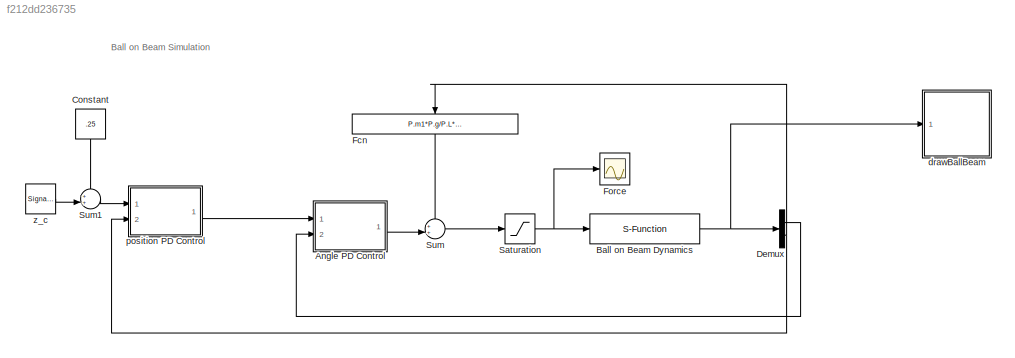
MODEL slx_f212dd236735
KIND model
CONFIG AbsTol = auto
CONFIG FixedStep = auto
CONFIG InitFcn = param
CONFIG MaxStep = auto
CONFIG MinStep = auto
CONFIG RelTol = 1e-3
CONFIG SampleTimeConstraint = Unconstrained
CONFIG Solver = ode45
CONFIG SolverMode = Auto
CONFIG SolverName = ode45
CONFIG StartTime = 0.0
CONFIG StopTime = 200
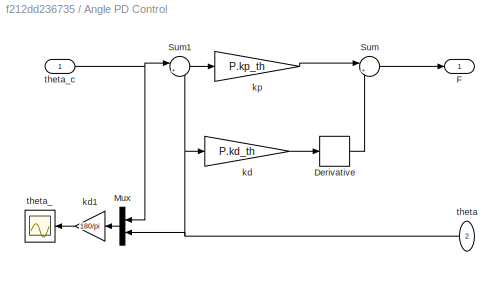
BLOCK [SubSystem] Angle PD Control 
  Ports = [2, 1]
  RequestExecContextInheritance = off
BLOCK [Derivative] Angle PD Control /Derivative
BLOCK [Outport] Angle PD Control /F
  IconDisplay = Port number
BLOCK [Mux] Angle PD Control /Mux
  DisplayOption = bar
  Inputs = 2
  Ports = [2, 1]
BLOCK [Sum] Angle PD Control /Sum
  IconShape = round
  InputSameDT = off
  Inputs = |+-
  OutDataTypeStr = Inherit: Inherit via internal rule
  Ports = [2, 1]
  SaturateOnIntegerOverflow = off
BLOCK [Sum] Angle PD Control /Sum1
  IconShape = round
  InputSameDT = off
  Inputs = |+-
  OutDataTypeStr = Inherit: Inherit via internal rule
  Ports = [2, 1]
  SaturateOnIntegerOverflow = off
BLOCK [Gain] Angle PD Control /kd
  Gain = P.kd_th
  OutDataTypeStr = Inherit: Inherit via internal rule
  ParamDataTypeStr = Inherit: Inherit via internal rule
  SaturateOnIntegerOverflow = off
BLOCK [Gain] Angle PD Control /kd1
  Gain = 180/pi
  OutDataTypeStr = Inherit: Inherit via internal rule
  ParamDataTypeStr = Inherit: Inherit via internal rule
  SaturateOnIntegerOverflow = off
BLOCK [Gain] Angle PD Control /kp
  Gain = P.kp_th
  OutDataTypeStr = Inherit: Inherit via internal rule
  ParamDataTypeStr = Inherit: Inherit via internal rule
  SaturateOnIntegerOverflow = off
BLOCK [Inport] Angle PD Control /theta
  IconDisplay = Port number
  Port = 2
BLOCK [Scope] Angle PD Control /theta_
  DataFormat = StructureWithTime
  Floating = off
  NumInputPorts = 1
  Ports = [1]
  SampleTime = 0
  SaveName = ScopeData1
  TimeRange = 200
  YMax = 0.1
  YMin = -0.1
BLOCK [Inport] Angle PD Control /theta_c
  IconDisplay = Port number
BLOCK [S-Function] Ball on Beam Dynamics
  FunctionName = ballbeam_dynamics
  Parameters = AP
  Ports = [1, 1]
BLOCK [Constant] Constant
  Value = .25
BLOCK [Demux] Demux
  DisplayOption = bar
  Outputs = 2
  Ports = [1, 2]
BLOCK [Fcn] Fcn
  Expr = P.m1*P.g/P.L*u+P.m2*P.g/2
BLOCK [Scope] Force
  DataFormat = StructureWithTime
  Floating = off
  NumInputPorts = 1
  Ports = [1]
  SampleTime = 0
  SaveName = ScopeData2
  YMax = 13
  YMin = 6
BLOCK [Saturate] Saturation
  InputPortMap = u0
  LowerLimit = -P.Fmax
  Ports = [1, 1]
  UpperLimit = P.Fmax
BLOCK [Sum] Sum
  IconShape = round
  InputSameDT = off
  Inputs = ++|
  OutDataTypeStr = Inherit: Inherit via internal rule
  Ports = [2, 1]
  SaturateOnIntegerOverflow = off
BLOCK [Sum] Sum1
  IconShape = round
  InputSameDT = off
  Inputs = ++|
  OutDataTypeStr = Inherit: Inherit via internal rule
  Ports = [2, 1]
  SaturateOnIntegerOverflow = off
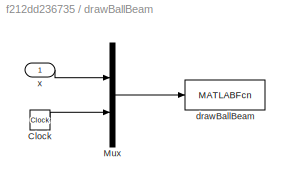
BLOCK [SubSystem] drawBallBeam
  Ports = [1]
  RequestExecContextInheritance = off
BLOCK [Clock] drawBallBeam/Clock
BLOCK [Mux] drawBallBeam/Mux
  DisplayOption = bar
  Inputs = 2
  Ports = [2, 1]
BLOCK [MATLABFcn] drawBallBeam/drawBallBeam
  MATLABFcn = drawBallBeam(u)
  OutputDimensions = 0
  Ports = [1]
  SampleTime = 0.1
BLOCK [Inport] drawBallBeam/x
  IconDisplay = Port number
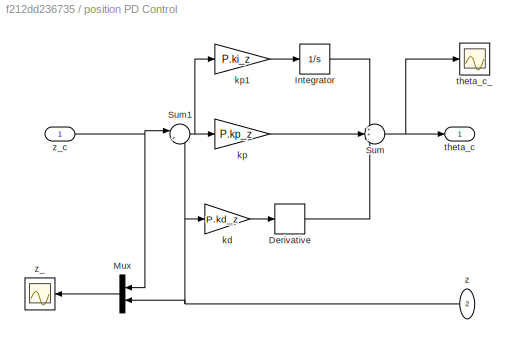
BLOCK [SubSystem] position PD Control
  Ports = [2, 1]
  RequestExecContextInheritance = off
BLOCK [Derivative] position PD Control/Derivative
BLOCK [Integrator] position PD Control/Integrator
  Ports = [1, 1]
BLOCK [Mux] position PD Control/Mux
  DisplayOption = bar
  Inputs = 2
  Ports = [2, 1]
BLOCK [Sum] position PD Control/Sum
  IconShape = round
  InputSameDT = off
  Inputs = ++-
  OutDataTypeStr = Inherit: Inherit via internal rule
  Ports = [3, 1]
  SaturateOnIntegerOverflow = off
BLOCK [Sum] position PD Control/Sum1
  IconShape = round
  InputSameDT = off
  Inputs = |+-
  OutDataTypeStr = Inherit: Inherit via internal rule
  Ports = [2, 1]
  SaturateOnIntegerOverflow = off
BLOCK [Gain] position PD Control/kd
  Gain = P.kd_z
  OutDataTypeStr = Inherit: Inherit via internal rule
  ParamDataTypeStr = Inherit: Inherit via internal rule
  SaturateOnIntegerOverflow = off
BLOCK [Gain] position PD Control/kp
  Gain = P.kp_z
  OutDataTypeStr = Inherit: Inherit via internal rule
  ParamDataTypeStr = Inherit: Inherit via internal rule
  SaturateOnIntegerOverflow = off
BLOCK [Gain] position PD Control/kp1
  Gain = P.ki_z
  OutDataTypeStr = Inherit: Inherit via internal rule
  ParamDataTypeStr = Inherit: Inherit via internal rule
  SaturateOnIntegerOverflow = off
BLOCK [Outport] position PD Control/theta_c
  IconDisplay = Port number
BLOCK [Scope] position PD Control/theta_c_
  DataFormat = StructureWithTime
  Floating = off
  NumInputPorts = 1
  Ports = [1]
  SampleTime = 0
  YMax = 1
  YMin = 0.15
BLOCK [Inport] position PD Control/z
  IconDisplay = Port number
  Port = 2
BLOCK [Scope] position PD Control/z_
  DataFormat = StructureWithTime
  Floating = off
  NumInputPorts = 1
  Ports = [1]
  SampleTime = 0
  SaveName = ScopeData1
  TimeRange = 200
  YMax = 0.45
  YMin = 0
BLOCK [Inport] position PD Control/z_c
  IconDisplay = Port number
BLOCK [SignalGenerator] z_c
  Amplitude = .15
  Frequency = .02
  Ports = [0, 1]
  WaveForm = square
ANNOTATION (root): Ball on Beam Simulation
LINE Angle PD Control /Derivative:1 -> Angle PD Control /Sum:2
LINE Angle PD Control /Mux:1 -> Angle PD Control /kd1:1
LINE Angle PD Control /Sum1:1 -> Angle PD Control /kp:1
LINE Angle PD Control /Sum:1 -> Angle PD Control /F:1
LINE Angle PD Control /kd1:1 -> Angle PD Control /theta_:1
LINE Angle PD Control /kd:1 -> Angle PD Control /Derivative:1
LINE Angle PD Control /kp:1 -> Angle PD Control /Sum:1
NET Angle PD Control /theta:1 -> Angle PD Control /Mux:2, Angle PD Control /Sum1:2, Angle PD Control /kd:1
NET Angle PD Control /theta_c:1 -> Angle PD Control /Mux:1, Angle PD Control /Sum1:1
LINE Angle PD Control :1 -> Sum:2
NET Ball on Beam Dynamics:1 -> Demux:1, drawBallBeam:1
LINE Constant:1 -> Sum1:1
LINE Demux:1 -> Angle PD Control :2
NET Demux:2 -> Fcn:1, position PD Control:2
LINE Fcn:1 -> Sum:1
NET Saturation:1 -> Ball on Beam Dynamics:1, Force:1
LINE Sum1:1 -> position PD Control:1
LINE Sum:1 -> Saturation:1
LINE drawBallBeam/Clock:1 -> drawBallBeam/Mux:2
LINE drawBallBeam/Mux:1 -> drawBallBeam/drawBallBeam:1
LINE drawBallBeam/x:1 -> drawBallBeam/Mux:1
LINE position PD Control/Derivative:1 -> position PD Control/Sum:3
LINE position PD Control/Integrator:1 -> position PD Control/Sum:1
LINE position PD Control/Mux:1 -> position PD Control/z_:1
NET position PD Control/Sum1:1 -> position PD Control/kp1:1, position PD Control/kp:1
NET position PD Control/Sum:1 -> position PD Control/theta_c:1, position PD Control/theta_c_:1
LINE position PD Control/kd:1 -> position PD Control/Derivative:1
LINE position PD Control/kp1:1 -> position PD Control/Integrator:1
LINE position PD Control/kp:1 -> position PD Control/Sum:2
NET position PD Control/z:1 -> position PD Control/Mux:2, position PD Control/Sum1:2, position PD Control/kd:1
NET position PD Control/z_c:1 -> position PD Control/Mux:1, position PD Control/Sum1:1
LINE position PD Control:1 -> Angle PD Control :1
LINE z_c:1 -> Sum1:2
note: NET lines group one-source signal fan-out (src -> all destinations, sorted); 1:1 wires keep LINE
